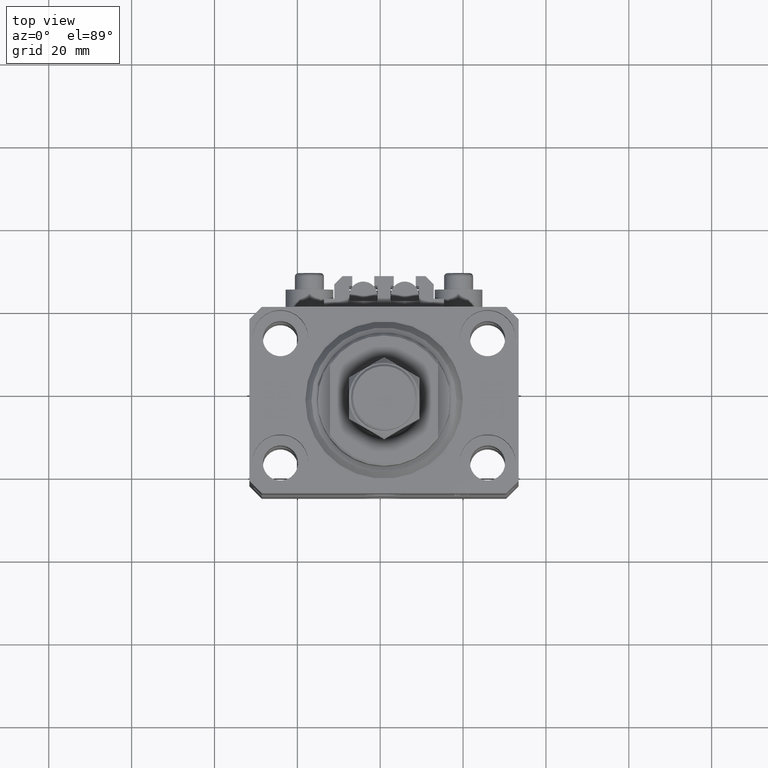
[diagram: clean part render]
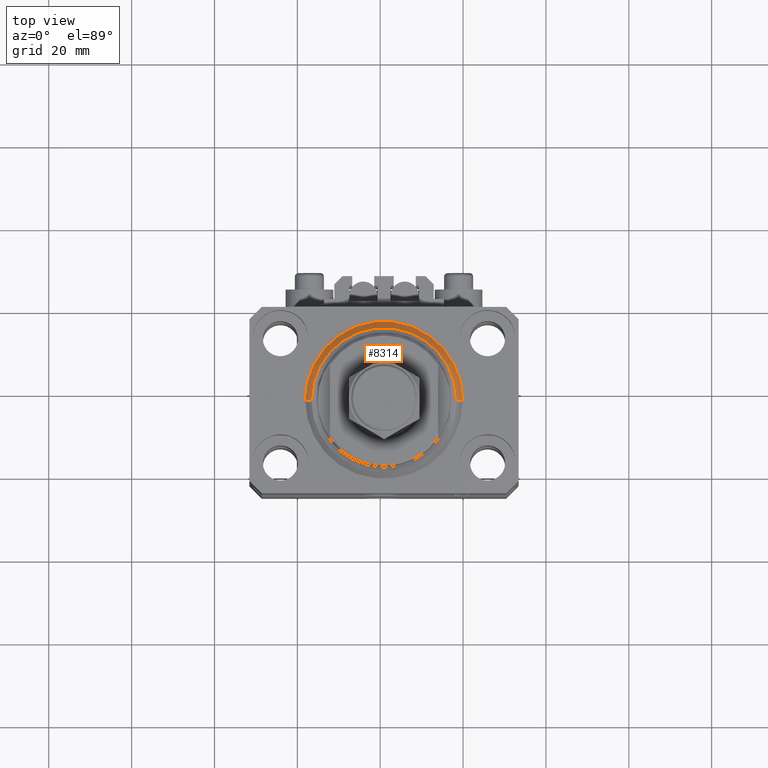
[diagram: same view with one face highlighted and labeled with its STEP entity id]
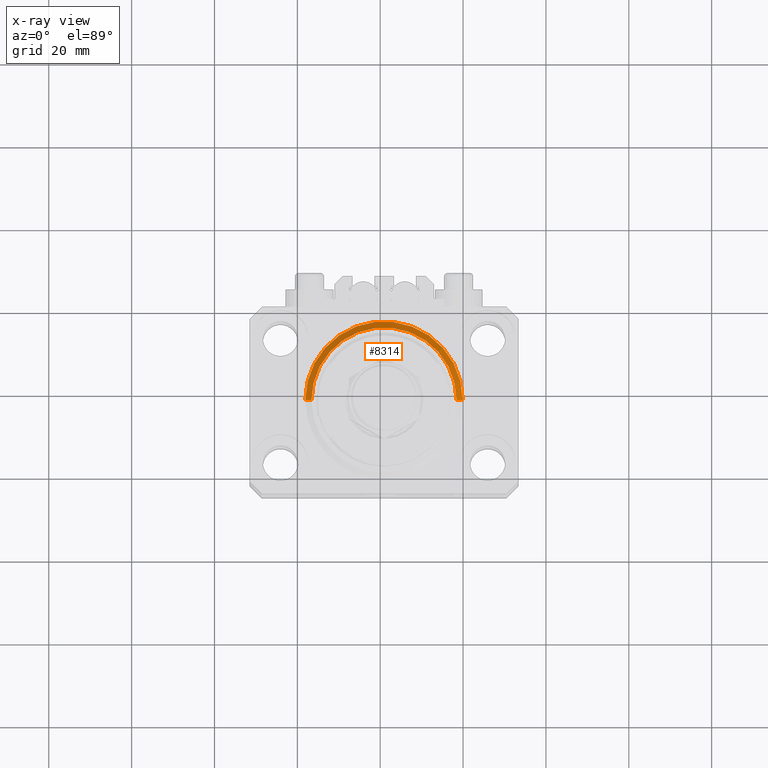
[diagram: x-ray of the same camera — body ghosted, the highlighted face saturated]
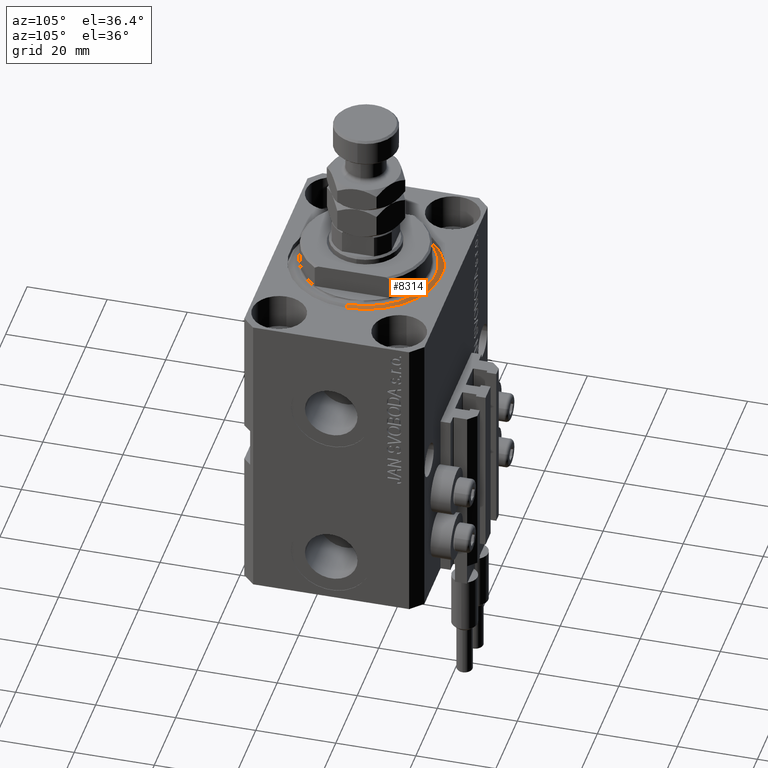
[diagram: same view with one face highlighted and labeled with its STEP entity id]
A machine part, top view. The second image highlights one B-rep face of the part: STEP entity #8314.
The next image is the same camera in x-ray: the body ghosted, the highlighted face saturated — about 0% of this face is hidden behind the body in this view.
A second angle (auxiliary view) of the same face is appended — the face is thin or edge-on in the first view.
In plain terms, the highlighted conical surface has half-angle 45 deg.
Its self-contained STEP definition (entity closure, byte-faithful):
#369 = CARTESIAN_POINT ( 'NONE',  ( 0.000000000000000000, 0.000000000000000000, 1.500000000000004885 ) ) ;
#1874 = LINE ( 'NONE', #4929, #30828 ) ;
#2292 = AXIS2_PLACEMENT_3D ( 'NONE', #369, #10254, #25258 ) ;
#3476 = ORIENTED_EDGE ( 'NONE', *, *, #9767, .F. ) ;
#4929 = CARTESIAN_POINT ( 'NONE',  ( 19.00000000000000000, 0.000000000000000000, 1.500000000000004885 ) ) ;
#5488 = VERTEX_POINT ( 'NONE', #13805 ) ;
#8314 = ADVANCED_FACE ( 'NONE', ( #35141 ), #12826, .T. ) ;
#8857 = ORIENTED_EDGE ( 'NONE', *, *, #18515, .T. ) ;
#9767 = EDGE_CURVE ( 'NONE', #39557, #32500, #46050, .T. ) ;
#10254 = DIRECTION ( 'NONE',  ( -0.000000000000000000, -0.000000000000000000, 1.000000000000000000 ) ) ;
#10708 = DIRECTION ( 'NONE',  ( -0.000000000000000000, -0.000000000000000000, -1.000000000000000000 ) ) ;
#11997 = AXIS2_PLACEMENT_3D ( 'NONE', #13744, #44161, #47461 ) ;
#12466 = CARTESIAN_POINT ( 'NONE',  ( -19.00000000000000000, 0.000000000000000000, 1.500000000000004885 ) ) ;
#12826 = CONICAL_SURFACE ( 'NONE', #2292, 19.00000000000000000, 0.7853981633974492782 ) ;
#13744 = CARTESIAN_POINT ( 'NONE',  ( 0.000000000000000000, 0.000000000000000000, 1.500000000000004885 ) ) ;
#13805 = CARTESIAN_POINT ( 'NONE',  ( 19.00000000000000000, 2.326828918379970970E-15, 1.500000000000004885 ) ) ;
#14298 = LINE ( 'NONE', #29774, #47466 ) ;
#14361 = ORIENTED_EDGE ( 'NONE', *, *, #47534, .F. ) ;
#18515 = EDGE_CURVE ( 'NONE', #39557, #42026, #14298, .T. ) ;
#20905 = DIRECTION ( 'NONE',  ( 0.7071067811865483499, 0.000000000000000000, 0.7071067811865467956 ) ) ;
#22713 = EDGE_CURVE ( 'NONE', #5488, #42026, #25797, .T. ) ;
#24274 = CARTESIAN_POINT ( 'NONE',  ( -17.49999999999999289, 2.234980408443919215E-15, 0.000000000000000000 ) ) ;
#25258 = DIRECTION ( 'NONE',  ( 1.000000000000000000, 0.000000000000000000, 0.000000000000000000 ) ) ;
#25797 = CIRCLE ( 'NONE', #11997, 19.00000000000000000 ) ;
#25934 = DIRECTION ( 'NONE',  ( 1.000000000000000000, 0.000000000000000000, 0.000000000000000000 ) ) ;
#29774 = CARTESIAN_POINT ( 'NONE',  ( -19.00000000000000000, 2.326828918379970970E-15, 1.500000000000004885 ) ) ;
#30556 = EDGE_LOOP ( 'NONE', ( #3476, #8857, #46053, #14361 ) ) ;
#30828 = VECTOR ( 'NONE', #20905, 1000.000000000000000 ) ;
#32500 = VERTEX_POINT ( 'NONE', #34452 ) ;
#34452 = CARTESIAN_POINT ( 'NONE',  ( 17.49999999999999289, 0.000000000000000000, 0.000000000000000000 ) ) ;
#35141 = FACE_OUTER_BOUND ( 'NONE', #30556, .T. ) ;
#37992 = AXIS2_PLACEMENT_3D ( 'NONE', #49009, #10708, #25934 ) ;
#39557 = VERTEX_POINT ( 'NONE', #24274 ) ;
#42026 = VERTEX_POINT ( 'NONE', #12466 ) ;
#44161 = DIRECTION ( 'NONE',  ( -0.000000000000000000, -0.000000000000000000, 1.000000000000000000 ) ) ;
#45235 = DIRECTION ( 'NONE',  ( -0.7071067811865483499, 8.659560562354943952E-17, 0.7071067811865467956 ) ) ;
#46050 = CIRCLE ( 'NONE', #37992, 17.49999999999999289 ) ;
#46053 = ORIENTED_EDGE ( 'NONE', *, *, #22713, .F. ) ;
#47461 = DIRECTION ( 'NONE',  ( 1.000000000000000000, 0.000000000000000000, 0.000000000000000000 ) ) ;
#47466 = VECTOR ( 'NONE', #45235, 1000.000000000000000 ) ;
#47534 = EDGE_CURVE ( 'NONE', #32500, #5488, #1874, .T. ) ;
#49009 = CARTESIAN_POINT ( 'NONE',  ( 0.000000000000000000, 0.000000000000000000, 0.000000000000000000 ) ) ;